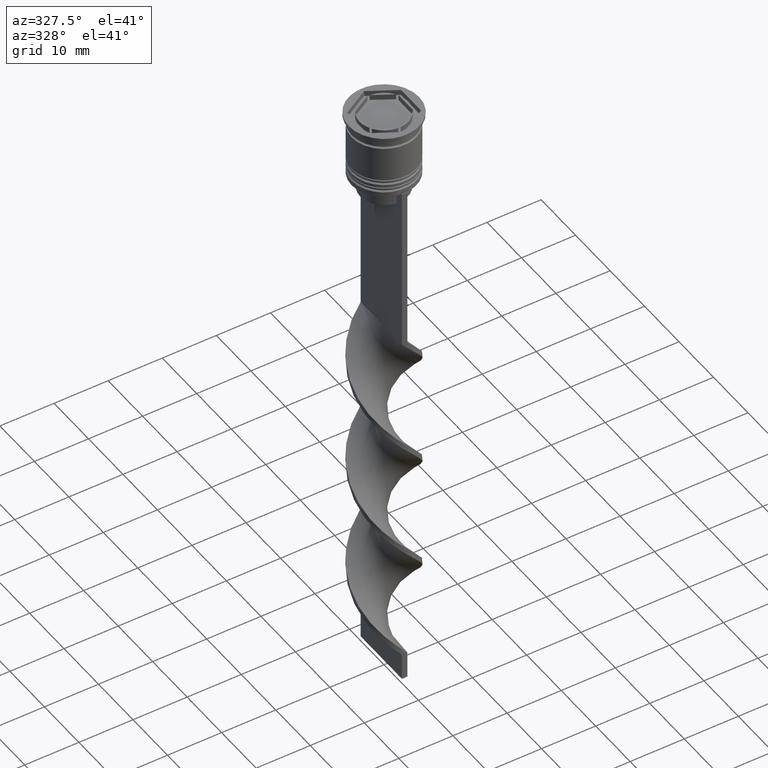
[diagram: clean part render]
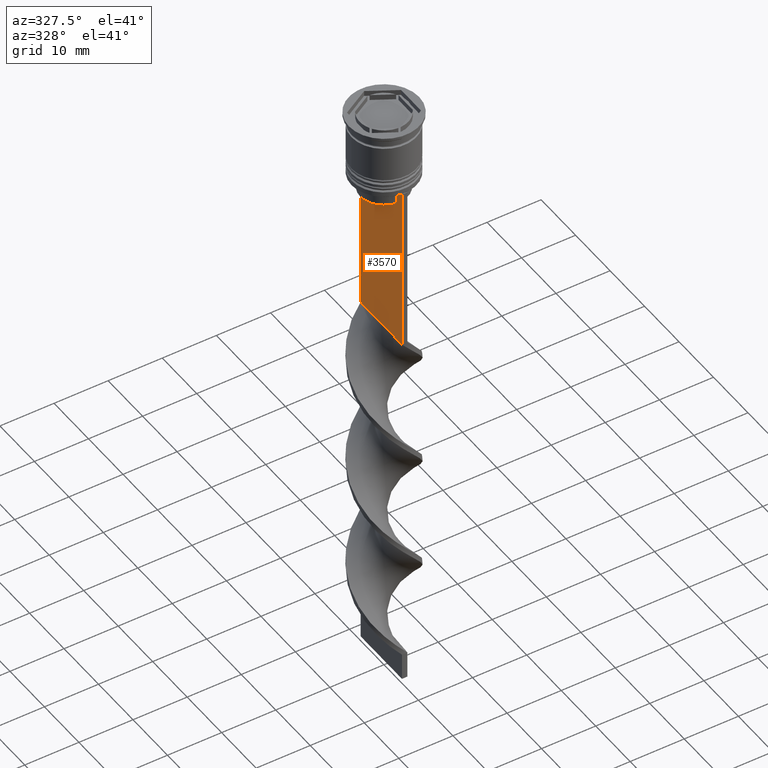
[diagram: same view with one face highlighted and labeled with its STEP entity id]
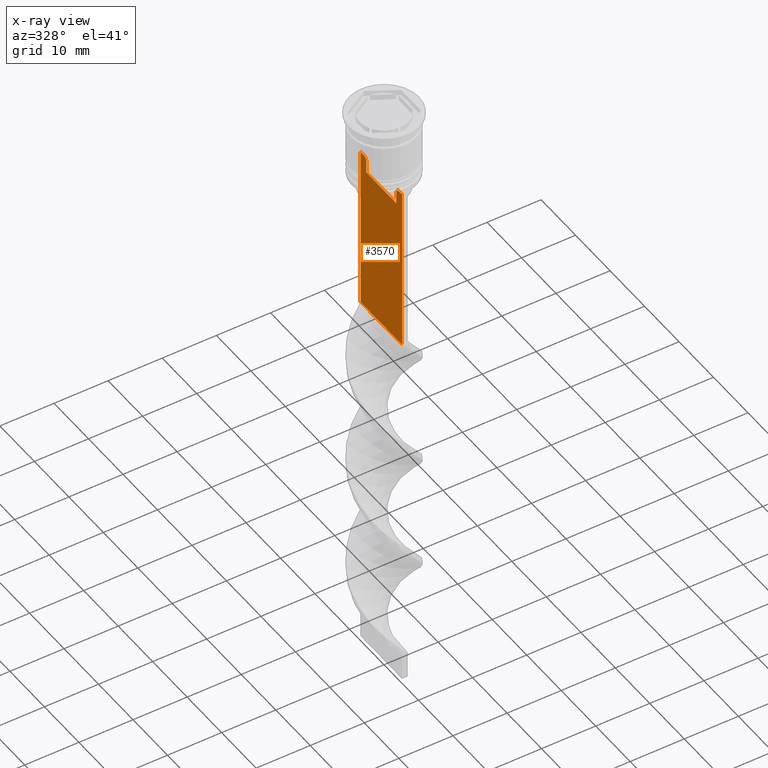
[diagram: x-ray of the same camera — body ghosted, the highlighted face saturated]
A machine part, auxiliary view. The second image highlights one B-rep face of the part: STEP entity #3570.
The next image is the same camera in x-ray: the body ghosted, the highlighted face saturated — about 0% of this face is hidden behind the body in this view.
In plain terms, the highlighted planar face has unit normal (-1, 0, 0).
Its self-contained STEP definition (entity closure, byte-faithful):
#52 = EDGE_CURVE ( 'NONE', #613, #3122, #1519, .T. ) ;
#83 = LINE ( 'NONE', #1773, #896 ) ;
#168 = EDGE_CURVE ( 'NONE', #842, #241, #2596, .T. ) ;
#185 = EDGE_CURVE ( 'NONE', #1966, #3300, #989, .T. ) ;
#228 = CARTESIAN_POINT ( 'NONE',  ( -0.4999999999999997780, -6.000000000000000000, -12.50000000000000000 ) ) ;
#241 = VERTEX_POINT ( 'NONE', #2439 ) ;
#246 = CARTESIAN_POINT ( 'NONE',  ( -0.4999999999999997780, -4.371498598878878816, -15.50000000000000000 ) ) ;
#274 = CARTESIAN_POINT ( 'NONE',  ( -0.4999999999999997780, -4.371498598878878816, -13.00000000000000178 ) ) ;
#315 = VECTOR ( 'NONE', #2148, 1000.000000000000000 ) ;
#320 = DIRECTION ( 'NONE',  ( 0.000000000000000000, 0.000000000000000000, -1.000000000000000000 ) ) ;
#423 = CARTESIAN_POINT ( 'NONE',  ( -0.4999999999999997780, -6.000000000000000000, -0.4584054212077061097 ) ) ;
#426 = CARTESIAN_POINT ( 'NONE',  ( -0.4999999999999997780, -6.000000000000000000, -12.50000000000000000 ) ) ;
#480 = EDGE_CURVE ( 'NONE', #485, #3130, #1930, .T. ) ;
#485 = VERTEX_POINT ( 'NONE', #2186 ) ;
#489 = VECTOR ( 'NONE', #1386, 1000.000000000000000 ) ;
#533 = DIRECTION ( 'NONE',  ( 0.000000000000000000, -1.000000000000000000, 0.000000000000000000 ) ) ;
#543 = EDGE_CURVE ( 'NONE', #1544, #485, #83, .T. ) ;
#555 = VECTOR ( 'NONE', #2796, 1000.000000000000000 ) ;
#563 = EDGE_CURVE ( 'NONE', #966, #1544, #3253, .T. ) ;
#577 = ORIENTED_EDGE ( 'NONE', *, *, #3263, .F. ) ;
#584 = CARTESIAN_POINT ( 'NONE',  ( -0.4999999999999997780, -4.371498598878878816, 0.000000000000000000 ) ) ;
#591 = CARTESIAN_POINT ( 'NONE',  ( -0.4999999999999997780, 4.371498598878878816, -13.00000000000000178 ) ) ;
#613 = VERTEX_POINT ( 'NONE', #2854 ) ;
#657 = DIRECTION ( 'NONE',  ( 0.000000000000000000, 0.000000000000000000, 1.000000000000000000 ) ) ;
#678 = DIRECTION ( 'NONE',  ( 0.000000000000000000, 0.000000000000000000, -1.000000000000000000 ) ) ;
#688 = EDGE_CURVE ( 'NONE', #1116, #1966, #3602, .T. ) ;
#750 = VERTEX_POINT ( 'NONE', #2332 ) ;
#837 = DIRECTION ( 'NONE',  ( -0.000000000000000000, -0.000000000000000000, 1.000000000000000000 ) ) ;
#842 = VERTEX_POINT ( 'NONE', #426 ) ;
#849 = VECTOR ( 'NONE', #837, 1000.000000000000000 ) ;
#852 = ORIENTED_EDGE ( 'NONE', *, *, #185, .F. ) ;
#896 = VECTOR ( 'NONE', #320, 1000.000000000000000 ) ;
#966 = VERTEX_POINT ( 'NONE', #1374 ) ;
#974 = CARTESIAN_POINT ( 'NONE',  ( -0.4999999999999997780, -4.539195586926424220, -12.83338928448044136 ) ) ;
#989 = LINE ( 'NONE', #2168, #315 ) ;
#1005 = PLANE ( 'NONE',  #1228 ) ;
#1011 = ORIENTED_EDGE ( 'NONE', *, *, #2086, .F. ) ;
#1035 = ORIENTED_EDGE ( 'NONE', *, *, #2157, .F. ) ;
#1064 = LINE ( 'NONE', #1339, #555 ) ;
#1116 = VERTEX_POINT ( 'NONE', #274 ) ;
#1175 = LINE ( 'NONE', #1466, #1457 ) ;
#1210 = CARTESIAN_POINT ( 'NONE',  ( -0.4999999999999997780, -6.000000000000000000, -0.4584054212077061097 ) ) ;
#1228 = AXIS2_PLACEMENT_3D ( 'NONE', #423, #2595, #657 ) ;
#1339 = CARTESIAN_POINT ( 'NONE',  ( -0.4999999999999997780, -6.000000000000000000, -43.50000000000000000 ) ) ;
#1358 = EDGE_LOOP ( 'NONE', ( #2482, #1011, #577, #1493, #3102, #3312, #1035, #852, #1733, #2265, #2606, #3417 ) ) ;
#1374 = CARTESIAN_POINT ( 'NONE',  ( -0.4999999999999997780, 4.874423042781576676, -12.50000000000000000 ) ) ;
#1386 = DIRECTION ( 'NONE',  ( 0.000000000000000000, -1.000000000000000000, 0.000000000000000000 ) ) ;
#1405 = CARTESIAN_POINT ( 'NONE',  ( -0.4999999999999997780, -6.000000000000000000, -12.50000000000000000 ) ) ;
#1435 = VECTOR ( 'NONE', #2187, 1000.000000000000000 ) ;
#1450 = CARTESIAN_POINT ( 'NONE',  ( -0.4999999999999997780, 4.874423042781576676, -12.50000000000000000 ) ) ;
#1457 = VECTOR ( 'NONE', #2012, 1000.000000000000000 ) ;
#1466 = CARTESIAN_POINT ( 'NONE',  ( -0.4999999999999997780, -6.000000000000000000, -12.50000000000000000 ) ) ;
#1467 = CARTESIAN_POINT ( 'NONE',  ( -0.4999999999999997780, 4.539195634199897356, -12.83338923751318816 ) ) ;
#1493 = ORIENTED_EDGE ( 'NONE', *, *, #52, .T. ) ;
#1519 = LINE ( 'NONE', #3190, #2399 ) ;
#1544 = VERTEX_POINT ( 'NONE', #3566 ) ;
#1593 = CARTESIAN_POINT ( 'NONE',  ( -0.4999999999999997780, -4.874423042781576676, -12.50000000000000000 ) ) ;
#1646 = LINE ( 'NONE', #584, #849 ) ;
#1733 = ORIENTED_EDGE ( 'NONE', *, *, #688, .F. ) ;
#1773 = CARTESIAN_POINT ( 'NONE',  ( -0.4999999999999997780, 4.371498598878878816, 0.000000000000000000 ) ) ;
#1781 = EDGE_CURVE ( 'NONE', #241, #3122, #1064, .T. ) ;
#1902 = CARTESIAN_POINT ( 'NONE',  ( -0.4999999999999997780, 6.000000000000000888, -43.50000000000000000 ) ) ;
#1930 = LINE ( 'NONE', #1950, #489 ) ;
#1950 = CARTESIAN_POINT ( 'NONE',  ( -0.4999999999999997780, 4.399999999999999467, -15.50000000000000000 ) ) ;
#1966 = VERTEX_POINT ( 'NONE', #1593 ) ;
#2012 = DIRECTION ( 'NONE',  ( 0.000000000000000000, -1.000000000000000000, 0.000000000000000000 ) ) ;
#2086 = EDGE_CURVE ( 'NONE', #750, #966, #2202, .T. ) ;
#2102 = EDGE_CURVE ( 'NONE', #3130, #1116, #1646, .T. ) ;
#2118 = CARTESIAN_POINT ( 'NONE',  ( -0.4999999999999997780, -4.371498598878878816, -13.00000000000000178 ) ) ;
#2148 = DIRECTION ( 'NONE',  ( 0.000000000000000000, -1.000000000000000000, 0.000000000000000000 ) ) ;
#2157 = EDGE_CURVE ( 'NONE', #3300, #842, #2169, .T. ) ;
#2168 = CARTESIAN_POINT ( 'NONE',  ( -0.4999999999999997780, -6.000000000000000000, -12.50000000000000000 ) ) ;
#2169 = LINE ( 'NONE', #1405, #1435 ) ;
#2186 = CARTESIAN_POINT ( 'NONE',  ( -0.4999999999999997780, 4.371498598878878816, -15.50000000000000000 ) ) ;
#2187 = DIRECTION ( 'NONE',  ( 0.000000000000000000, -1.000000000000000000, 0.000000000000000000 ) ) ;
#2202 = LINE ( 'NONE', #228, #3351 ) ;
#2265 = ORIENTED_EDGE ( 'NONE', *, *, #2102, .F. ) ;
#2298 = CARTESIAN_POINT ( 'NONE',  ( -0.4999999999999997780, -5.878775382679627626, -12.50000000000000000 ) ) ;
#2314 = CARTESIAN_POINT ( 'NONE',  ( -0.4999999999999997780, 4.706831415367290106, -12.66671683478478982 ) ) ;
#2332 = CARTESIAN_POINT ( 'NONE',  ( -0.4999999999999997780, 5.878775382679627626, -12.50000000000000000 ) ) ;
#2399 = VECTOR ( 'NONE', #3451, 1000.000000000000000 ) ;
#2439 = CARTESIAN_POINT ( 'NONE',  ( -0.4999999999999997780, -6.000000000000000000, -43.50000000000000000 ) ) ;
#2482 = ORIENTED_EDGE ( 'NONE', *, *, #563, .F. ) ;
#2595 = DIRECTION ( 'NONE',  ( -1.000000000000000000, 0.000000000000000000, 0.000000000000000000 ) ) ;
#2596 = LINE ( 'NONE', #1210, #3460 ) ;
#2606 = ORIENTED_EDGE ( 'NONE', *, *, #480, .F. ) ;
#2648 = FACE_OUTER_BOUND ( 'NONE', #1358, .T. ) ;
#2796 = DIRECTION ( 'NONE',  ( 0.000000000000000000, 1.000000000000000000, 0.000000000000000000 ) ) ;
#2854 = CARTESIAN_POINT ( 'NONE',  ( -0.4999999999999997780, 6.000000000000001776, -12.50000000000000000 ) ) ;
#3102 = ORIENTED_EDGE ( 'NONE', *, *, #1781, .F. ) ;
#3122 = VERTEX_POINT ( 'NONE', #1902 ) ;
#3130 = VERTEX_POINT ( 'NONE', #246 ) ;
#3190 = CARTESIAN_POINT ( 'NONE',  ( -0.4999999999999997780, 6.000000000000000888, -0.4584054212077061097 ) ) ;
#3253 = B_SPLINE_CURVE_WITH_KNOTS ( 'NONE', 3,
 ( #1450, #2314, #1467, #591 ),
 .UNSPECIFIED., .F., .F.,
 ( 4, 4 ),
 ( 0.008336552452178418518, 0.009045730124312837891 ),
 .UNSPECIFIED. ) ;
#3263 = EDGE_CURVE ( 'NONE', #613, #750, #1175, .T. ) ;
#3300 = VERTEX_POINT ( 'NONE', #2298 ) ;
#3312 = ORIENTED_EDGE ( 'NONE', *, *, #168, .F. ) ;
#3351 = VECTOR ( 'NONE', #533, 1000.000000000000000 ) ;
#3417 = ORIENTED_EDGE ( 'NONE', *, *, #543, .F. ) ;
#3451 = DIRECTION ( 'NONE',  ( 0.000000000000000000, 0.000000000000000000, -1.000000000000000000 ) ) ;
#3460 = VECTOR ( 'NONE', #678, 1000.000000000000000 ) ;
#3490 = CARTESIAN_POINT ( 'NONE',  ( -0.4999999999999997780, -4.874423042781576676, -12.50000000000000000 ) ) ;
#3510 = CARTESIAN_POINT ( 'NONE',  ( -0.4999999999999997780, -4.706831372970964544, -12.66671687695981596 ) ) ;
#3566 = CARTESIAN_POINT ( 'NONE',  ( -0.4999999999999997780, 4.371498598878878816, -13.00000000000000178 ) ) ;
#3570 = ADVANCED_FACE ( 'NONE', ( #2648 ), #1005, .T. ) ;
#3602 = B_SPLINE_CURVE_WITH_KNOTS ( 'NONE', 3,
 ( #2118, #974, #3510, #3490 ),
 .UNSPECIFIED., .F., .F.,
 ( 4, 4 ),
 ( 0.02089901220910806920, 0.02161421017310284978 ),
 .UNSPECIFIED. ) ;